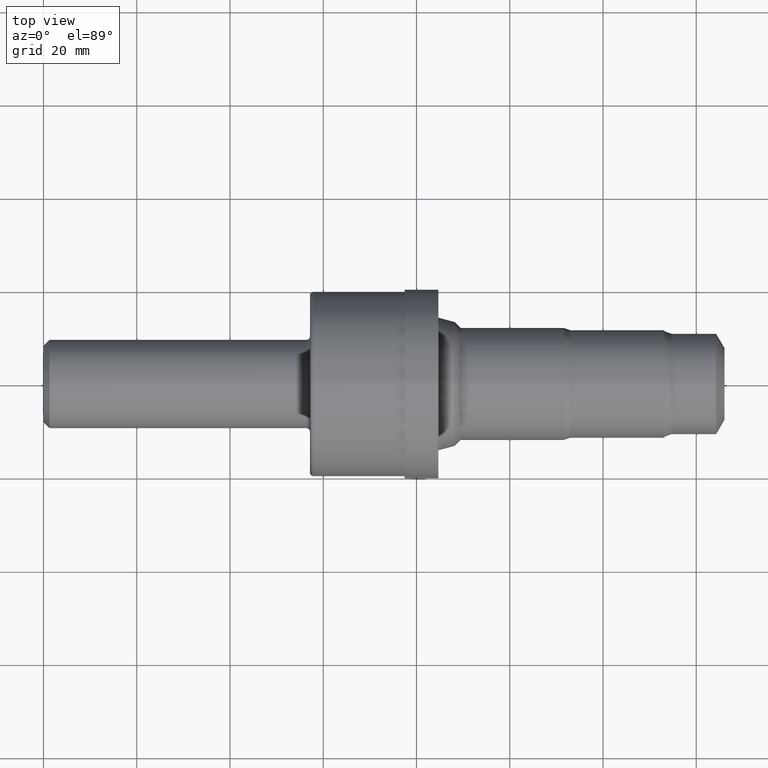
[diagram: clean part render]
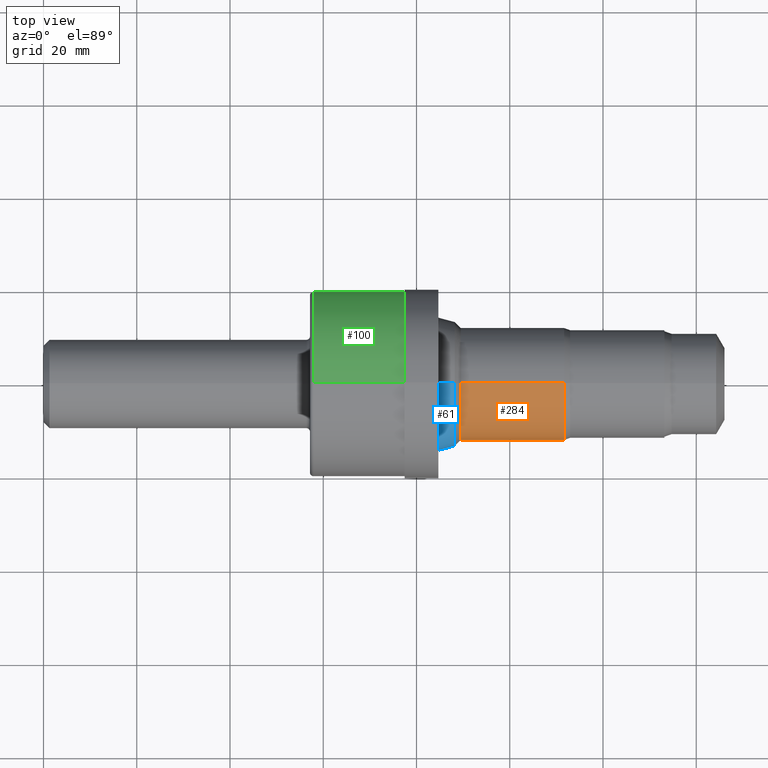
[diagram: same view with three faces highlighted in distinct colors, each labeled with its STEP entity id]
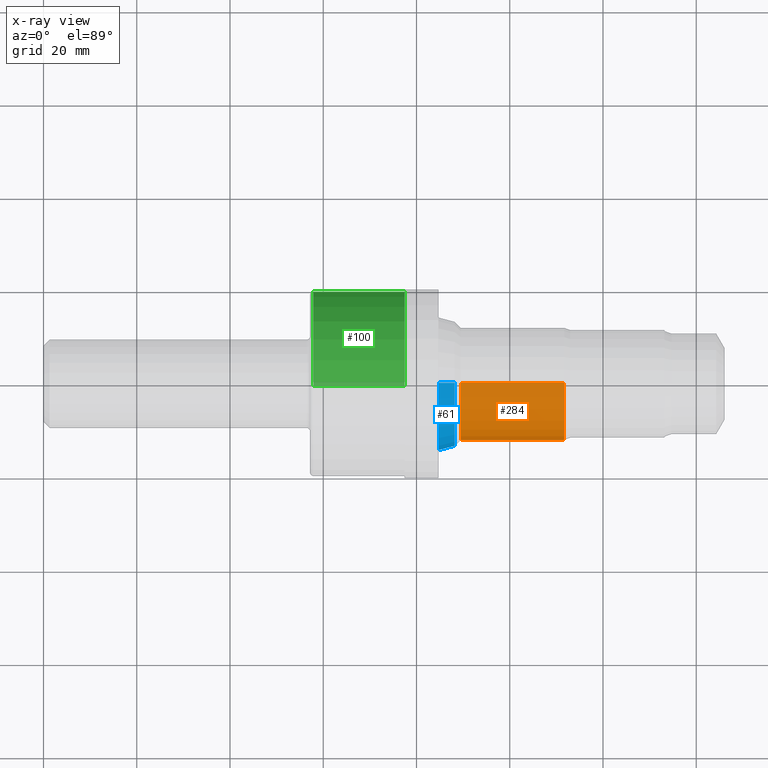
[diagram: x-ray of the same camera — body ghosted, the three highlighted faces saturated]
A machine part, top view with three faces highlighted in distinct colors.
The next image is the same camera in x-ray (body ghosted, the three faces saturated) — at least one of them is partly hidden behind the body in this view.
Their STEP definitions:

[orange] entity #284 — the highlighted cylindrical surface (partial cylindrical patch) has radius 12.065 mm, axis along (-1, -0, -0).
#19 = ORIENTED_EDGE ( 'NONE', *, *, #942, .F. ) ;
#110 = DIRECTION ( 'NONE',  ( -1.000000000000000000, -0.0000000000000000000, -0.0000000000000000000 ) ) ;
#112 = CYLINDRICAL_SURFACE ( 'NONE', #963, 0.4749999999999999778 ) ;
#135 = CIRCLE ( 'NONE', #162, 0.4749999999999999778 ) ;
#144 = CARTESIAN_POINT ( 'NONE',  ( 3.522773011444504387, 5.817072295949927179E-17, -0.4749999999999999778 ) ) ;
#162 = AXIS2_PLACEMENT_3D ( 'NONE', #554, #372, #964 ) ;
#256 = CARTESIAN_POINT ( 'NONE',  ( 0.0000000000000000000, 0.0000000000000000000, 0.4749999999999999778 ) ) ;
#275 = VERTEX_POINT ( 'NONE', #715 ) ;
#284 = ADVANCED_FACE ( 'NONE', ( #733 ), #112, .T. ) ;
#287 = ORIENTED_EDGE ( 'NONE', *, *, #507, .T. ) ;
#349 = CARTESIAN_POINT ( 'NONE',  ( 4.395999999999999908, 0.0000000000000000000, 0.0000000000000000000 ) ) ;
#362 = VECTOR ( 'NONE', #914, 39.37007874015748143 ) ;
#372 = DIRECTION ( 'NONE',  ( -1.000000000000000000, -0.0000000000000000000, -0.0000000000000000000 ) ) ;
#383 = LINE ( 'NONE', #907, #362 ) ;
#389 = DIRECTION ( 'NONE',  ( -1.000000000000000000, -0.0000000000000000000, -0.0000000000000000000 ) ) ;
#421 = VERTEX_POINT ( 'NONE', #626 ) ;
#495 = CARTESIAN_POINT ( 'NONE',  ( 0.0000000000000000000, 0.0000000000000000000, 0.0000000000000000000 ) ) ;
#497 = EDGE_CURVE ( 'NONE', #275, #861, #383, .T. ) ;
#507 = EDGE_CURVE ( 'NONE', #275, #421, #746, .T. ) ;
#508 = EDGE_LOOP ( 'NONE', ( #577, #287, #904, #19 ) ) ;
#554 = CARTESIAN_POINT ( 'NONE',  ( 3.522773011444504387, 0.0000000000000000000, 0.0000000000000000000 ) ) ;
#571 = DIRECTION ( 'NONE',  ( -1.000000000000000000, -0.0000000000000000000, -0.0000000000000000000 ) ) ;
#577 = ORIENTED_EDGE ( 'NONE', *, *, #497, .F. ) ;
#579 = VERTEX_POINT ( 'NONE', #894 ) ;
#626 = CARTESIAN_POINT ( 'NONE',  ( 4.395999999999999908, 0.0000000000000000000, 0.4749999999999999778 ) ) ;
#654 = EDGE_CURVE ( 'NONE', #421, #579, #855, .T. ) ;
#663 = VECTOR ( 'NONE', #110, 39.37007874015748143 ) ;
#691 = DIRECTION ( 'NONE',  ( 0.0000000000000000000, 0.0000000000000000000, 1.000000000000000000 ) ) ;
#715 = CARTESIAN_POINT ( 'NONE',  ( 4.395999999999999908, 5.817072295949927179E-17, -0.4749999999999999778 ) ) ;
#733 = FACE_OUTER_BOUND ( 'NONE', #508, .T. ) ;
#746 = CIRCLE ( 'NONE', #808, 0.4749999999999999778 ) ;
#808 = AXIS2_PLACEMENT_3D ( 'NONE', #349, #389, #691 ) ;
#855 = LINE ( 'NONE', #256, #663 ) ;
#861 = VERTEX_POINT ( 'NONE', #144 ) ;
#894 = CARTESIAN_POINT ( 'NONE',  ( 3.522773011444504387, 0.0000000000000000000, 0.4749999999999999778 ) ) ;
#904 = ORIENTED_EDGE ( 'NONE', *, *, #654, .T. ) ;
#907 = CARTESIAN_POINT ( 'NONE',  ( 0.0000000000000000000, 5.817072295949927179E-17, -0.4749999999999999778 ) ) ;
#914 = DIRECTION ( 'NONE',  ( -1.000000000000000000, -0.0000000000000000000, -0.0000000000000000000 ) ) ;
#932 = DIRECTION ( 'NONE',  ( 0.0000000000000000000, 0.0000000000000000000, 1.000000000000000000 ) ) ;
#942 = EDGE_CURVE ( 'NONE', #861, #579, #135, .T. ) ;
#963 = AXIS2_PLACEMENT_3D ( 'NONE', #495, #571, #932 ) ;
#964 = DIRECTION ( 'NONE',  ( 0.0000000000000000000, 0.0000000000000000000, 1.000000000000000000 ) ) ;

[blue] entity #61 — the highlighted conical surface has half-angle 15 deg.
#1 = DIRECTION ( 'NONE',  ( 0.0000000000000000000, 0.0000000000000000000, 1.000000000000000000 ) ) ;
#8 = VERTEX_POINT ( 'NONE', #755 ) ;
#30 = VECTOR ( 'NONE', #409, 39.37007874015748854 ) ;
#32 = CARTESIAN_POINT ( 'NONE',  ( 3.339558857161730288, 0.0000000000000000000, 0.0000000000000000000 ) ) ;
#61 = ADVANCED_FACE ( 'NONE', ( #395 ), #935, .T. ) ;
#62 = LINE ( 'NONE', #181, #30 ) ;
#66 = EDGE_CURVE ( 'NONE', #403, #400, #738, .T. ) ;
#79 = AXIS2_PLACEMENT_3D ( 'NONE', #165, #168, #228 ) ;
#85 = DIRECTION ( 'NONE',  ( 0.0000000000000000000, 0.0000000000000000000, 1.000000000000000000 ) ) ;
#165 = CARTESIAN_POINT ( 'NONE',  ( 3.471999999999999531, 0.0000000000000000000, 0.0000000000000000000 ) ) ;
#167 = CARTESIAN_POINT ( 'NONE',  ( 3.471999999999999531, 0.0000000000000000000, 0.0000000000000000000 ) ) ;
#168 = DIRECTION ( 'NONE',  ( -1.000000000000000000, -0.0000000000000000000, -0.0000000000000000000 ) ) ;
#181 = CARTESIAN_POINT ( 'NONE',  ( 3.471999999999999531, 6.438862355435778537E-17, -0.5257730114445050562 ) ) ;
#214 = EDGE_CURVE ( 'NONE', #8, #403, #62, .T. ) ;
#228 = DIRECTION ( 'NONE',  ( 0.0000000000000000000, 0.0000000000000000000, 1.000000000000000000 ) ) ;
#337 = ORIENTED_EDGE ( 'NONE', *, *, #777, .T. ) ;
#377 = DIRECTION ( 'NONE',  ( -0.9659258262890675351, 0.0000000000000000000, 0.2588190451025237926 ) ) ;
#391 = DIRECTION ( 'NONE',  ( -1.000000000000000000, -0.0000000000000000000, -0.0000000000000000000 ) ) ;
#395 = FACE_OUTER_BOUND ( 'NONE', #488, .T. ) ;
#400 = VERTEX_POINT ( 'NONE', #545 ) ;
#403 = VERTEX_POINT ( 'NONE', #531 ) ;
#409 = DIRECTION ( 'NONE',  ( -0.9659258262890675351, 3.169619151431801919E-17, -0.2588190451025237926 ) ) ;
#432 = ORIENTED_EDGE ( 'NONE', *, *, #214, .F. ) ;
#439 = ORIENTED_EDGE ( 'NONE', *, *, #66, .F. ) ;
#453 = VERTEX_POINT ( 'NONE', #759 ) ;
#458 = CARTESIAN_POINT ( 'NONE',  ( 3.471999999999999531, 0.0000000000000000000, 0.5257730114445050562 ) ) ;
#488 = EDGE_LOOP ( 'NONE', ( #432, #337, #892, #439 ) ) ;
#531 = CARTESIAN_POINT ( 'NONE',  ( 3.339558857161730288, 6.873458854827921609E-17, -0.5612605087126746328 ) ) ;
#545 = CARTESIAN_POINT ( 'NONE',  ( 3.339558857161730288, 0.0000000000000000000, 0.5612605087126746328 ) ) ;
#576 = CIRCLE ( 'NONE', #79, 0.5257730114445050562 ) ;
#660 = AXIS2_PLACEMENT_3D ( 'NONE', #32, #391, #1 ) ;
#734 = EDGE_CURVE ( 'NONE', #453, #400, #795, .T. ) ;
#738 = CIRCLE ( 'NONE', #660, 0.5612605087126746328 ) ;
#755 = CARTESIAN_POINT ( 'NONE',  ( 3.471999999999999531, 6.438862355435778537E-17, -0.5257730114445050562 ) ) ;
#759 = CARTESIAN_POINT ( 'NONE',  ( 3.471999999999999531, 0.0000000000000000000, 0.5257730114445050562 ) ) ;
#777 = EDGE_CURVE ( 'NONE', #8, #453, #576, .T. ) ;
#779 = DIRECTION ( 'NONE',  ( -1.000000000000000000, -0.0000000000000000000, -0.0000000000000000000 ) ) ;
#795 = LINE ( 'NONE', #458, #954 ) ;
#851 = AXIS2_PLACEMENT_3D ( 'NONE', #167, #779, #85 ) ;
#892 = ORIENTED_EDGE ( 'NONE', *, *, #734, .T. ) ;
#935 = CONICAL_SURFACE ( 'NONE', #851, 0.5257730114445050562, 0.2617993877991525720 ) ;
#954 = VECTOR ( 'NONE', #377, 39.37007874015748854 ) ;

[green] entity #100 — the highlighted cylindrical surface (partial cylindrical patch) has radius 19.8755 mm, axis along (-1, -0, -0).
#46 = AXIS2_PLACEMENT_3D ( 'NONE', #536, #446, #852 ) ;
#57 = EDGE_CURVE ( 'NONE', #512, #709, #441, .T. ) ;
#90 = EDGE_LOOP ( 'NONE', ( #443, #815, #224, #838 ) ) ;
#100 = ADVANCED_FACE ( 'NONE', ( #702 ), #115, .T. ) ;
#115 = CYLINDRICAL_SURFACE ( 'NONE', #361, 0.7825000000000000844 ) ;
#151 = CARTESIAN_POINT ( 'NONE',  ( 3.048999999999999488, 9.582861203328039197E-17, -0.7825000000000000844 ) ) ;
#171 = DIRECTION ( 'NONE',  ( 0.0000000000000000000, 0.0000000000000000000, 1.000000000000000000 ) ) ;
#183 = DIRECTION ( 'NONE',  ( -1.000000000000000000, -0.0000000000000000000, -0.0000000000000000000 ) ) ;
#224 = ORIENTED_EDGE ( 'NONE', *, *, #57, .F. ) ;
#326 = CIRCLE ( 'NONE', #46, 0.7825000000000000844 ) ;
#361 = AXIS2_PLACEMENT_3D ( 'NONE', #692, #763, #171 ) ;
#364 = AXIS2_PLACEMENT_3D ( 'NONE', #730, #802, #585 ) ;
#370 = CARTESIAN_POINT ( 'NONE',  ( 0.0000000000000000000, 9.582861203328039197E-17, -0.7825000000000000844 ) ) ;
#375 = LINE ( 'NONE', #370, #548 ) ;
#407 = CARTESIAN_POINT ( 'NONE',  ( 0.0000000000000000000, 0.0000000000000000000, 0.7825000000000000844 ) ) ;
#423 = LINE ( 'NONE', #407, #598 ) ;
#441 = CIRCLE ( 'NONE', #364, 0.7825000000000000844 ) ;
#443 = ORIENTED_EDGE ( 'NONE', *, *, #958, .T. ) ;
#446 = DIRECTION ( 'NONE',  ( -1.000000000000000000, -0.0000000000000000000, -0.0000000000000000000 ) ) ;
#512 = VERTEX_POINT ( 'NONE', #966 ) ;
#536 = CARTESIAN_POINT ( 'NONE',  ( 3.048999999999999488, 0.0000000000000000000, 0.0000000000000000000 ) ) ;
#548 = VECTOR ( 'NONE', #831, 39.37007874015748143 ) ;
#585 = DIRECTION ( 'NONE',  ( 0.0000000000000000000, 0.0000000000000000000, 1.000000000000000000 ) ) ;
#598 = VECTOR ( 'NONE', #183, 39.37007874015748143 ) ;
#611 = CARTESIAN_POINT ( 'NONE',  ( 3.048999999999999488, 0.0000000000000000000, 0.7825000000000000844 ) ) ;
#692 = CARTESIAN_POINT ( 'NONE',  ( 0.0000000000000000000, 0.0000000000000000000, 0.0000000000000000000 ) ) ;
#702 = FACE_OUTER_BOUND ( 'NONE', #90, .T. ) ;
#709 = VERTEX_POINT ( 'NONE', #901 ) ;
#721 = EDGE_CURVE ( 'NONE', #832, #512, #423, .T. ) ;
#730 = CARTESIAN_POINT ( 'NONE',  ( 2.279999999999999805, 0.0000000000000000000, 0.0000000000000000000 ) ) ;
#763 = DIRECTION ( 'NONE',  ( -1.000000000000000000, -0.0000000000000000000, -0.0000000000000000000 ) ) ;
#786 = VERTEX_POINT ( 'NONE', #151 ) ;
#802 = DIRECTION ( 'NONE',  ( -1.000000000000000000, -0.0000000000000000000, -0.0000000000000000000 ) ) ;
#815 = ORIENTED_EDGE ( 'NONE', *, *, #817, .T. ) ;
#817 = EDGE_CURVE ( 'NONE', #786, #709, #375, .T. ) ;
#831 = DIRECTION ( 'NONE',  ( -1.000000000000000000, -0.0000000000000000000, -0.0000000000000000000 ) ) ;
#832 = VERTEX_POINT ( 'NONE', #611 ) ;
#838 = ORIENTED_EDGE ( 'NONE', *, *, #721, .F. ) ;
#852 = DIRECTION ( 'NONE',  ( 0.0000000000000000000, 0.0000000000000000000, 1.000000000000000000 ) ) ;
#901 = CARTESIAN_POINT ( 'NONE',  ( 2.279999999999999805, 9.582861203328039197E-17, -0.7825000000000000844 ) ) ;
#958 = EDGE_CURVE ( 'NONE', #832, #786, #326, .T. ) ;
#966 = CARTESIAN_POINT ( 'NONE',  ( 2.279999999999999805, 0.0000000000000000000, 0.7825000000000000844 ) ) ;